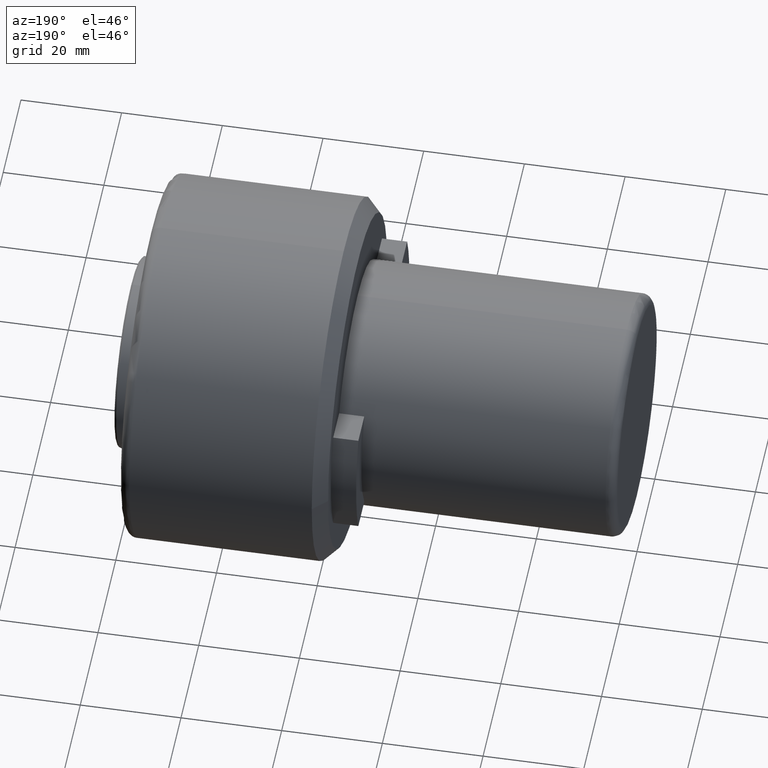
[diagram: clean part render]
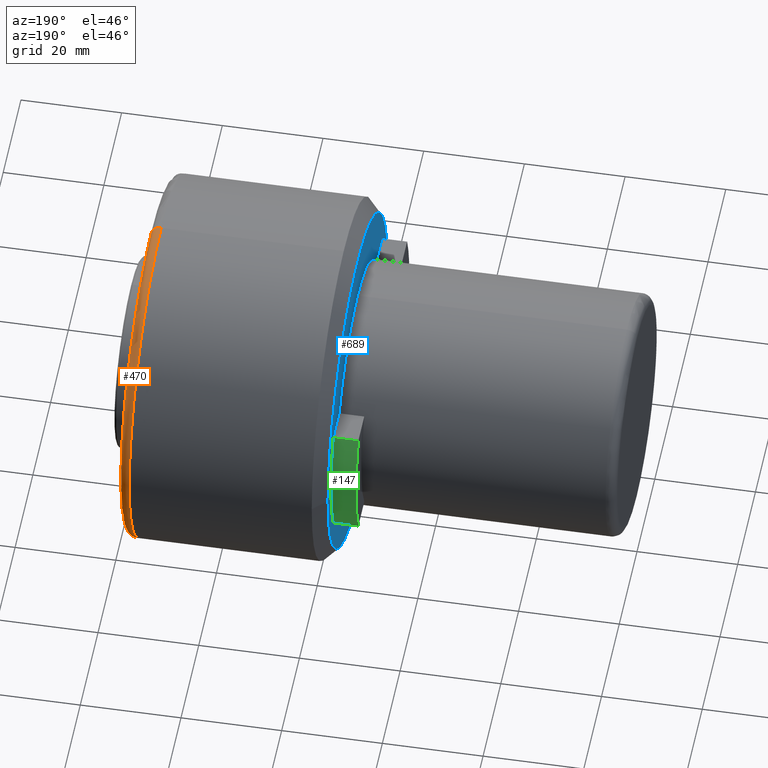
[diagram: same view with three faces highlighted in distinct colors, each labeled with its STEP entity id]
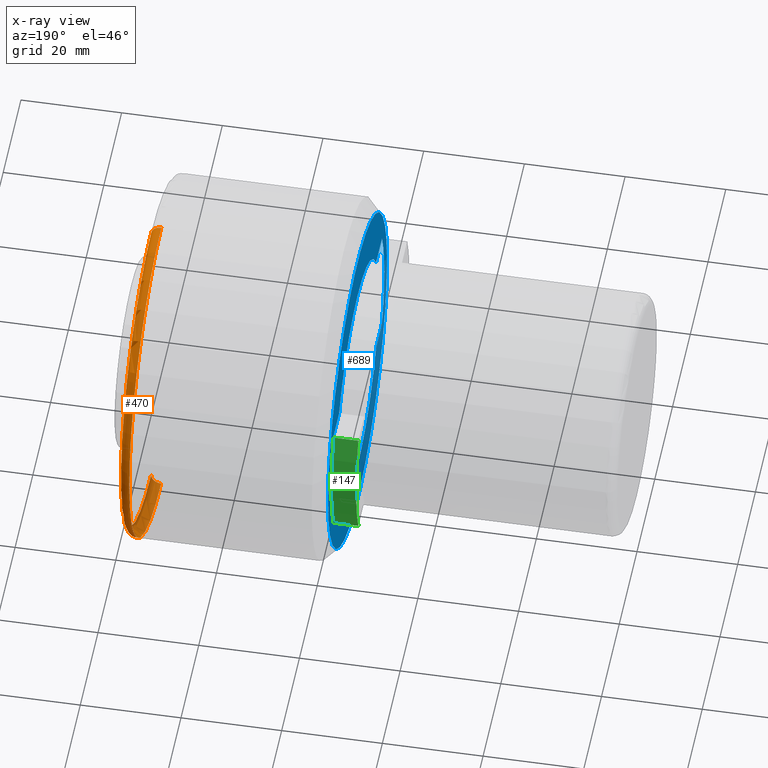
[diagram: x-ray of the same camera — body ghosted, the three highlighted faces saturated]
A machine part, auxiliary view with three faces highlighted in distinct colors.
The next image is the same camera in x-ray (body ghosted, the three faces saturated) — at least one of them is partly hidden behind the body in this view.
Their STEP definitions:

[orange] entity #470 — the highlighted toroidal blend (fillet) surface has major radius 34 mm and minor (blend) radius 2 mm.
#1 = CARTESIAN_POINT ( 'NONE',  ( 94.50000000000000000, 0.0000000000000000000, 36.00000000000001400 ) ) ;
#29 = DIRECTION ( 'NONE',  ( 0.0000000000000000000, 0.0000000000000000000, 1.000000000000000000 ) ) ;
#91 = DIRECTION ( 'NONE',  ( 1.000000000000000000, -0.0000000000000000000, -0.0000000000000000000 ) ) ;
#136 = CIRCLE ( 'NONE', #848, 2.000000000000001800 ) ;
#248 = CIRCLE ( 'NONE', #933, 2.000000000000001800 ) ;
#257 = ORIENTED_EDGE ( 'NONE', *, *, #542, .T. ) ;
#279 = EDGE_CURVE ( 'NONE', #1393, #1208, #831, .T. ) ;
#417 = ORIENTED_EDGE ( 'NONE', *, *, #755, .F. ) ;
#466 = ORIENTED_EDGE ( 'NONE', *, *, #279, .F. ) ;
#470 = ADVANCED_FACE ( 'NONE', ( #1068 ), #1323, .T. ) ;
#479 = EDGE_CURVE ( 'NONE', #927, #811, #495, .T. ) ;
#487 = DIRECTION ( 'NONE',  ( 0.0000000000000000000, -1.000000000000000000, 0.0000000000000000000 ) ) ;
#493 = CARTESIAN_POINT ( 'NONE',  ( 94.50000000000000000, 0.0000000000000000000, 0.0000000000000000000 ) ) ;
#495 = CIRCLE ( 'NONE', #815, 36.00000000000001400 ) ;
#540 = DIRECTION ( 'NONE',  ( 0.0000000000000000000, 0.0000000000000000000, 1.000000000000000000 ) ) ;
#542 = EDGE_CURVE ( 'NONE', #1393, #811, #136, .T. ) ;
#550 = CARTESIAN_POINT ( 'NONE',  ( 94.50000000000000000, 4.408728476930472400E-015, -36.00000000000001400 ) ) ;
#570 = ORIENTED_EDGE ( 'NONE', *, *, #479, .F. ) ;
#621 = DIRECTION ( 'NONE',  ( 0.0000000000000000000, -1.224646799147353500E-016, 1.000000000000000000 ) ) ;
#698 = DIRECTION ( 'NONE',  ( -1.000000000000000000, 0.0000000000000000000, 0.0000000000000000000 ) ) ;
#749 = CARTESIAN_POINT ( 'NONE',  ( 96.50000000000000000, 4.286263797015737300E-015, -34.00000000000000700 ) ) ;
#755 = EDGE_CURVE ( 'NONE', #1208, #927, #248, .T. ) ;
#811 = VERTEX_POINT ( 'NONE', #550 ) ;
#815 = AXIS2_PLACEMENT_3D ( 'NONE', #493, #698, #916 ) ;
#816 = CARTESIAN_POINT ( 'NONE',  ( 94.50000000000000000, 0.0000000000000000000, 34.00000000000000700 ) ) ;
#831 = CIRCLE ( 'NONE', #1054, 34.00000000000000700 ) ;
#848 = AXIS2_PLACEMENT_3D ( 'NONE', #869, #1335, #621 ) ;
#869 = CARTESIAN_POINT ( 'NONE',  ( 94.50000000000000000, 4.163799117101001300E-015, -34.00000000000000700 ) ) ;
#872 = DIRECTION ( 'NONE',  ( 0.0000000000000000000, 0.0000000000000000000, -1.000000000000000000 ) ) ;
#890 = CARTESIAN_POINT ( 'NONE',  ( 94.50000000000000000, 0.0000000000000000000, 0.0000000000000000000 ) ) ;
#916 = DIRECTION ( 'NONE',  ( 0.0000000000000000000, 0.0000000000000000000, 1.000000000000000000 ) ) ;
#927 = VERTEX_POINT ( 'NONE', #1 ) ;
#933 = AXIS2_PLACEMENT_3D ( 'NONE', #816, #487, #872 ) ;
#947 = CARTESIAN_POINT ( 'NONE',  ( 96.50000000000000000, 0.0000000000000000000, 0.0000000000000000000 ) ) ;
#1054 = AXIS2_PLACEMENT_3D ( 'NONE', #947, #91, #29 ) ;
#1063 = CARTESIAN_POINT ( 'NONE',  ( 96.50000000000000000, 0.0000000000000000000, 34.00000000000000700 ) ) ;
#1068 = FACE_OUTER_BOUND ( 'NONE', #1301, .T. ) ;
#1076 = DIRECTION ( 'NONE',  ( -1.000000000000000000, 0.0000000000000000000, 0.0000000000000000000 ) ) ;
#1208 = VERTEX_POINT ( 'NONE', #1063 ) ;
#1237 = AXIS2_PLACEMENT_3D ( 'NONE', #890, #1076, #540 ) ;
#1301 = EDGE_LOOP ( 'NONE', ( #466, #257, #570, #417 ) ) ;
#1323 = TOROIDAL_SURFACE ( 'NONE', #1237, 34.00000000000000700, 2.000000000000000000 ) ;
#1335 = DIRECTION ( 'NONE',  ( 0.0000000000000000000, 1.000000000000000000, 1.224646799147353200E-016 ) ) ;
#1393 = VERTEX_POINT ( 'NONE', #749 ) ;

[blue] entity #689 — the highlighted planar face has unit normal (1, 0, 0).
#10 = EDGE_CURVE ( 'NONE', #1038, #728, #1061, .T. ) ;
#20 = DIRECTION ( 'NONE',  ( 2.312964634635743000E-016, -1.000000000000000000, 0.0000000000000000000 ) ) ;
#21 = CARTESIAN_POINT ( 'NONE',  ( 55.49999999999999300, -20.78460969007334200, 12.00000000130456000 ) ) ;
#24 = CARTESIAN_POINT ( 'NONE',  ( 55.50000000000000000, 3.677383230559753400E-031, 0.0000000000000000000 ) ) ;
#34 = ORIENTED_EDGE ( 'NONE', *, *, #1079, .F. ) ;
#70 = CARTESIAN_POINT ( 'NONE',  ( 55.50000000000000700, -27.49545417167629000, -11.99999999570380800 ) ) ;
#81 = DIRECTION ( 'NONE',  ( -0.0000000000000000000, 1.000000000000000000, 0.0000000000000000000 ) ) ;
#82 = AXIS2_PLACEMENT_3D ( 'NONE', #902, #1192, #20 ) ;
#96 = LINE ( 'NONE', #1325, #932 ) ;
#105 = CARTESIAN_POINT ( 'NONE',  ( 55.49999999999999300, 0.0000000000000000000, -7.523163844717393100E-031 ) ) ;
#109 = ORIENTED_EDGE ( 'NONE', *, *, #459, .F. ) ;
#120 = AXIS2_PLACEMENT_3D ( 'NONE', #1174, #310, #1040 ) ;
#130 = AXIS2_PLACEMENT_3D ( 'NONE', #939, #793, #281 ) ;
#135 = ORIENTED_EDGE ( 'NONE', *, *, #529, .F. ) ;
#156 = EDGE_CURVE ( 'NONE', #390, #1300, #1144, .T. ) ;
#173 = VERTEX_POINT ( 'NONE', #695 ) ;
#212 = VERTEX_POINT ( 'NONE', #930 ) ;
#231 = LINE ( 'NONE', #1152, #1260 ) ;
#232 = DIRECTION ( 'NONE',  ( -1.000000000000000000, 0.0000000000000000000, -1.445602896647339200E-016 ) ) ;
#238 = VERTEX_POINT ( 'NONE', #317 ) ;
#251 = ORIENTED_EDGE ( 'NONE', *, *, #291, .F. ) ;
#260 = CIRCLE ( 'NONE', #120, 30.00000000000000000 ) ;
#270 = ORIENTED_EDGE ( 'NONE', *, *, #454, .F. ) ;
#281 = DIRECTION ( 'NONE',  ( 0.0000000000000000000, 0.0000000000000000000, 1.000000000000000000 ) ) ;
#291 = EDGE_CURVE ( 'NONE', #610, #390, #1043, .T. ) ;
#308 = ORIENTED_EDGE ( 'NONE', *, *, #323, .F. ) ;
#310 = DIRECTION ( 'NONE',  ( -1.000000000000000000, -1.156482317317871700E-016, -0.0000000000000000000 ) ) ;
#317 = CARTESIAN_POINT ( 'NONE',  ( 55.50000000000000700, 2.939152317953647900E-015, -24.00000000000000000 ) ) ;
#323 = EDGE_CURVE ( 'NONE', #334, #1084, #440, .T. ) ;
#334 = VERTEX_POINT ( 'NONE', #1149 ) ;
#345 = CARTESIAN_POINT ( 'NONE',  ( 55.50000000000000700, 0.0000000000000000000, 5.015442563508426400E-031 ) ) ;
#364 = DIRECTION ( 'NONE',  ( 0.0000000000000000000, -1.000000000000000000, -0.0000000000000000000 ) ) ;
#383 = AXIS2_PLACEMENT_3D ( 'NONE', #105, #429, #1069 ) ;
#387 = ORIENTED_EDGE ( 'NONE', *, *, #1231, .F. ) ;
#390 = VERTEX_POINT ( 'NONE', #1081 ) ;
#396 = CIRCLE ( 'NONE', #835, 33.24999999999999300 ) ;
#403 = DIRECTION ( 'NONE',  ( 1.000000000000000000, 0.0000000000000000000, 0.0000000000000000000 ) ) ;
#411 = DIRECTION ( 'NONE',  ( 1.000000000000000000, 9.637352644315590300E-017, -0.0000000000000000000 ) ) ;
#413 = DIRECTION ( 'NONE',  ( -1.000000000000000000, -1.156482317317871700E-016, -0.0000000000000000000 ) ) ;
#419 = VERTEX_POINT ( 'NONE', #70 ) ;
#428 = VECTOR ( 'NONE', #527, 1000.000000000000000 ) ;
#429 = DIRECTION ( 'NONE',  ( -1.000000000000000000, 0.0000000000000000000, -1.445602896647339200E-016 ) ) ;
#437 = AXIS2_PLACEMENT_3D ( 'NONE', #345, #1119, #801 ) ;
#440 = CIRCLE ( 'NONE', #1014, 33.24999999999999300 ) ;
#442 = CARTESIAN_POINT ( 'NONE',  ( 55.50000000000000000, 20.78460969240347500, -11.99999999726865100 ) ) ;
#454 = EDGE_CURVE ( 'NONE', #173, #739, #820, .T. ) ;
#459 = EDGE_CURVE ( 'NONE', #804, #238, #1350, .T. ) ;
#460 = DIRECTION ( 'NONE',  ( 0.0000000000000000000, 0.0000000000000000000, 1.000000000000000000 ) ) ;
#463 = LINE ( 'NONE', #993, #428 ) ;
#473 = VECTOR ( 'NONE', #724, 1000.000000000000000 ) ;
#511 = EDGE_CURVE ( 'NONE', #1300, #804, #463, .T. ) ;
#527 = DIRECTION ( 'NONE',  ( 0.0000000000000000000, -1.000000000000000000, -0.0000000000000000000 ) ) ;
#529 = EDGE_CURVE ( 'NONE', #212, #419, #231, .T. ) ;
#534 = CARTESIAN_POINT ( 'NONE',  ( 55.49999999999999300, -2.650271977186816100E-016, 0.0000000000000000000 ) ) ;
#587 = CARTESIAN_POINT ( 'NONE',  ( 55.49999999999999300, -2.650271977186816100E-016, 0.0000000000000000000 ) ) ;
#596 = DIRECTION ( 'NONE',  ( 0.0000000000000000000, 0.0000000000000000000, -1.000000000000000000 ) ) ;
#610 = VERTEX_POINT ( 'NONE', #1169 ) ;
#679 = ORIENTED_EDGE ( 'NONE', *, *, #1250, .F. ) ;
#687 = DIRECTION ( 'NONE',  ( 2.312964634635743000E-016, -1.000000000000000000, 0.0000000000000000000 ) ) ;
#689 = ADVANCED_FACE ( 'NONE', ( #1364, #875 ), #770, .F. ) ;
#695 = CARTESIAN_POINT ( 'NONE',  ( 55.50000000000000700, -30.00000000000000000, 0.0000000000000000000 ) ) ;
#701 = AXIS2_PLACEMENT_3D ( 'NONE', #1305, #232, #460 ) ;
#716 = CIRCLE ( 'NONE', #437, 24.00000000000000000 ) ;
#724 = DIRECTION ( 'NONE',  ( -0.0000000000000000000, 1.000000000000000000, 0.0000000000000000000 ) ) ;
#728 = VERTEX_POINT ( 'NONE', #1235 ) ;
#729 = DIRECTION ( 'NONE',  ( 0.0000000000000000000, 1.000000000000000000, 0.0000000000000000000 ) ) ;
#739 = VERTEX_POINT ( 'NONE', #1243 ) ;
#770 = PLANE ( 'NONE',  #906 ) ;
#793 = DIRECTION ( 'NONE',  ( -1.000000000000000000, 0.0000000000000000000, -1.445602896647339200E-016 ) ) ;
#801 = DIRECTION ( 'NONE',  ( 0.0000000000000000000, 0.0000000000000000000, 1.000000000000000000 ) ) ;
#804 = VERTEX_POINT ( 'NONE', #442 ) ;
#818 = ORIENTED_EDGE ( 'NONE', *, *, #1238, .F. ) ;
#820 = CIRCLE ( 'NONE', #82, 30.00000000000000000 ) ;
#822 = DIRECTION ( 'NONE',  ( 1.000000000000000000, 9.637352644315590300E-017, -0.0000000000000000000 ) ) ;
#835 = AXIS2_PLACEMENT_3D ( 'NONE', #587, #822, #1346 ) ;
#844 = ORIENTED_EDGE ( 'NONE', *, *, #156, .F. ) ;
#855 = AXIS2_PLACEMENT_3D ( 'NONE', #24, #413, #687 ) ;
#875 = FACE_BOUND ( 'NONE', #889, .T. ) ;
#889 = EDGE_LOOP ( 'NONE', ( #135, #679, #109, #1220, #844, #251, #1245, #935, #818, #270, #34 ) ) ;
#902 = CARTESIAN_POINT ( 'NONE',  ( 55.50000000000000000, -3.677383230559753800E-031, 0.0000000000000000000 ) ) ;
#906 = AXIS2_PLACEMENT_3D ( 'NONE', #925, #403, #596 ) ;
#925 = CARTESIAN_POINT ( 'NONE',  ( 55.50000000000000000, -33.64900000000000100, -33.64900000000000100 ) ) ;
#930 = CARTESIAN_POINT ( 'NONE',  ( 55.50000000000000700, -20.78460969578734200, -11.99999999140761600 ) ) ;
#932 = VECTOR ( 'NONE', #81, 1000.000000000000000 ) ;
#935 = ORIENTED_EDGE ( 'NONE', *, *, #10, .F. ) ;
#939 = CARTESIAN_POINT ( 'NONE',  ( 55.49999999999999300, 0.0000000000000000000, -7.523163844717393100E-031 ) ) ;
#969 = EDGE_LOOP ( 'NONE', ( #308, #387 ) ) ;
#993 = CARTESIAN_POINT ( 'NONE',  ( 55.50000000000000000, -33.64900000000000100, -11.99999999575899600 ) ) ;
#1014 = AXIS2_PLACEMENT_3D ( 'NONE', #534, #411, #729 ) ;
#1038 = VERTEX_POINT ( 'NONE', #21 ) ;
#1040 = DIRECTION ( 'NONE',  ( 2.312964634635743000E-016, -1.000000000000000000, 0.0000000000000000000 ) ) ;
#1043 = LINE ( 'NONE', #1129, #473 ) ;
#1061 = CIRCLE ( 'NONE', #383, 24.00000000000000000 ) ;
#1069 = DIRECTION ( 'NONE',  ( 0.0000000000000000000, 0.0000000000000000000, 1.000000000000000000 ) ) ;
#1073 = EDGE_CURVE ( 'NONE', #728, #610, #1093, .T. ) ;
#1079 = EDGE_CURVE ( 'NONE', #419, #173, #260, .T. ) ;
#1081 = CARTESIAN_POINT ( 'NONE',  ( 55.49999999999999300, 27.49545417074602900, 11.99999999783530000 ) ) ;
#1084 = VERTEX_POINT ( 'NONE', #1156 ) ;
#1093 = CIRCLE ( 'NONE', #130, 24.00000000000000000 ) ;
#1119 = DIRECTION ( 'NONE',  ( -1.000000000000000000, 0.0000000000000000000, -1.445602896647339200E-016 ) ) ;
#1129 = CARTESIAN_POINT ( 'NONE',  ( 55.50000000000000000, -33.64900000000000100, 11.99999999567059900 ) ) ;
#1144 = CIRCLE ( 'NONE', #855, 30.00000000000000000 ) ;
#1149 = CARTESIAN_POINT ( 'NONE',  ( 55.49999999999999300, 33.24999999999999300, 0.0000000000000000000 ) ) ;
#1152 = CARTESIAN_POINT ( 'NONE',  ( 55.50000000000000000, -33.64900000000000100, -11.99999999140761600 ) ) ;
#1156 = CARTESIAN_POINT ( 'NONE',  ( 55.49999999999999300, -33.24999999999999300, 4.240339542047711600E-015 ) ) ;
#1169 = CARTESIAN_POINT ( 'NONE',  ( 55.50000000000000700, 20.78460969332610700, 11.99999999567060100 ) ) ;
#1174 = CARTESIAN_POINT ( 'NONE',  ( 55.50000000000000000, -3.677383230559753800E-031, 0.0000000000000000000 ) ) ;
#1192 = DIRECTION ( 'NONE',  ( -1.000000000000000000, -1.156482317317871700E-016, -0.0000000000000000000 ) ) ;
#1206 = CARTESIAN_POINT ( 'NONE',  ( 55.49999999999999300, 27.49545417165220900, -11.99999999787949900 ) ) ;
#1220 = ORIENTED_EDGE ( 'NONE', *, *, #511, .F. ) ;
#1231 = EDGE_CURVE ( 'NONE', #1084, #334, #396, .T. ) ;
#1235 = CARTESIAN_POINT ( 'NONE',  ( 55.49999999999999300, 0.0000000000000000000, 24.00000000000000400 ) ) ;
#1238 = EDGE_CURVE ( 'NONE', #739, #1038, #96, .T. ) ;
#1243 = CARTESIAN_POINT ( 'NONE',  ( 55.50000000000000700, -27.49545416980128100, 11.99999999999999800 ) ) ;
#1245 = ORIENTED_EDGE ( 'NONE', *, *, #1073, .F. ) ;
#1250 = EDGE_CURVE ( 'NONE', #238, #212, #716, .T. ) ;
#1260 = VECTOR ( 'NONE', #364, 1000.000000000000000 ) ;
#1300 = VERTEX_POINT ( 'NONE', #1206 ) ;
#1305 = CARTESIAN_POINT ( 'NONE',  ( 55.50000000000000700, 0.0000000000000000000, 5.015442563508426400E-031 ) ) ;
#1325 = CARTESIAN_POINT ( 'NONE',  ( 55.50000000000000000, -33.64900000000000100, 11.99999999999999600 ) ) ;
#1346 = DIRECTION ( 'NONE',  ( 0.0000000000000000000, 1.000000000000000000, 0.0000000000000000000 ) ) ;
#1350 = CIRCLE ( 'NONE', #701, 24.00000000000000000 ) ;
#1364 = FACE_OUTER_BOUND ( 'NONE', #969, .T. ) ;

[green] entity #147 — the highlighted cylindrical surface (partial cylindrical patch) has radius 30 mm, axis along (-1, -0, -0).
#24 = CARTESIAN_POINT ( 'NONE',  ( 55.50000000000000000, 3.677383230559753400E-031, 0.0000000000000000000 ) ) ;
#36 = AXIS2_PLACEMENT_3D ( 'NONE', #464, #1217, #578 ) ;
#51 = CARTESIAN_POINT ( 'NONE',  ( 50.50000000000000000, 27.49545417171844600, -12.00000000000000000 ) ) ;
#56 = VERTEX_POINT ( 'NONE', #671 ) ;
#73 = ORIENTED_EDGE ( 'NONE', *, *, #1219, .T. ) ;
#147 = ADVANCED_FACE ( 'NONE', ( #895 ), #865, .T. ) ;
#156 = EDGE_CURVE ( 'NONE', #390, #1300, #1144, .T. ) ;
#169 = DIRECTION ( 'NONE',  ( 1.000000000000000000, -0.0000000000000000000, 0.0000000000000000000 ) ) ;
#170 = VECTOR ( 'NONE', #234, 1000.000000000000000 ) ;
#234 = DIRECTION ( 'NONE',  ( -1.000000000000000000, -0.0000000000000000000, -0.0000000000000000000 ) ) ;
#240 = DIRECTION ( 'NONE',  ( 2.312964634635743000E-016, -1.000000000000000000, 0.0000000000000000000 ) ) ;
#354 = EDGE_CURVE ( 'NONE', #480, #56, #1172, .T. ) ;
#390 = VERTEX_POINT ( 'NONE', #1081 ) ;
#412 = CARTESIAN_POINT ( 'NONE',  ( 50.50000000000000000, 27.49545416986751800, 12.00000000000000000 ) ) ;
#413 = DIRECTION ( 'NONE',  ( -1.000000000000000000, -1.156482317317871700E-016, -0.0000000000000000000 ) ) ;
#464 = CARTESIAN_POINT ( 'NONE',  ( 50.50000000000000000, -5.782411586589351700E-016, 0.0000000000000000000 ) ) ;
#480 = VERTEX_POINT ( 'NONE', #1386 ) ;
#499 = EDGE_CURVE ( 'NONE', #1300, #480, #1033, .T. ) ;
#503 = EDGE_LOOP ( 'NONE', ( #940, #1138, #73, #742 ) ) ;
#578 = DIRECTION ( 'NONE',  ( 2.312964634635743000E-016, -1.000000000000000000, 1.776356839400250500E-015 ) ) ;
#671 = CARTESIAN_POINT ( 'NONE',  ( 50.50000000000000000, 27.49545416980128100, 12.00000000000000000 ) ) ;
#687 = DIRECTION ( 'NONE',  ( 2.312964634635743000E-016, -1.000000000000000000, 0.0000000000000000000 ) ) ;
#742 = ORIENTED_EDGE ( 'NONE', *, *, #156, .T. ) ;
#769 = AXIS2_PLACEMENT_3D ( 'NONE', #862, #1018, #240 ) ;
#855 = AXIS2_PLACEMENT_3D ( 'NONE', #24, #413, #687 ) ;
#862 = CARTESIAN_POINT ( 'NONE',  ( 55.50000000000000000, 0.0000000000000000000, 0.0000000000000000000 ) ) ;
#865 = CYLINDRICAL_SURFACE ( 'NONE', #769, 30.00000000000000000 ) ;
#895 = FACE_OUTER_BOUND ( 'NONE', #503, .T. ) ;
#940 = ORIENTED_EDGE ( 'NONE', *, *, #499, .T. ) ;
#961 = LINE ( 'NONE', #412, #1252 ) ;
#1018 = DIRECTION ( 'NONE',  ( -1.000000000000000000, -1.156482317317871700E-016, -0.0000000000000000000 ) ) ;
#1033 = LINE ( 'NONE', #51, #170 ) ;
#1081 = CARTESIAN_POINT ( 'NONE',  ( 55.49999999999999300, 27.49545417074602900, 11.99999999783530000 ) ) ;
#1138 = ORIENTED_EDGE ( 'NONE', *, *, #354, .T. ) ;
#1144 = CIRCLE ( 'NONE', #855, 30.00000000000000000 ) ;
#1172 = CIRCLE ( 'NONE', #36, 30.00000000000000000 ) ;
#1206 = CARTESIAN_POINT ( 'NONE',  ( 55.49999999999999300, 27.49545417165220900, -11.99999999787949900 ) ) ;
#1217 = DIRECTION ( 'NONE',  ( 1.000000000000000000, 1.156482317317871700E-016, 0.0000000000000000000 ) ) ;
#1219 = EDGE_CURVE ( 'NONE', #56, #390, #961, .T. ) ;
#1252 = VECTOR ( 'NONE', #169, 1000.000000000000000 ) ;
#1300 = VERTEX_POINT ( 'NONE', #1206 ) ;
#1386 = CARTESIAN_POINT ( 'NONE',  ( 50.50000000000000000, 27.49545417072674200, -12.00000000000000000 ) ) ;